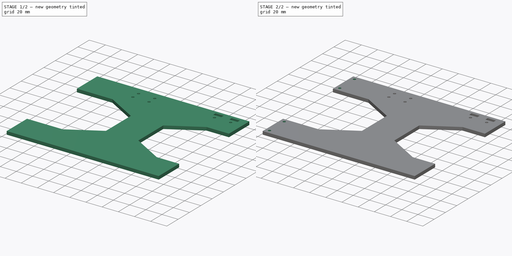
[diagram: build sequence overview — one tinted view per stage of 2, left to right]
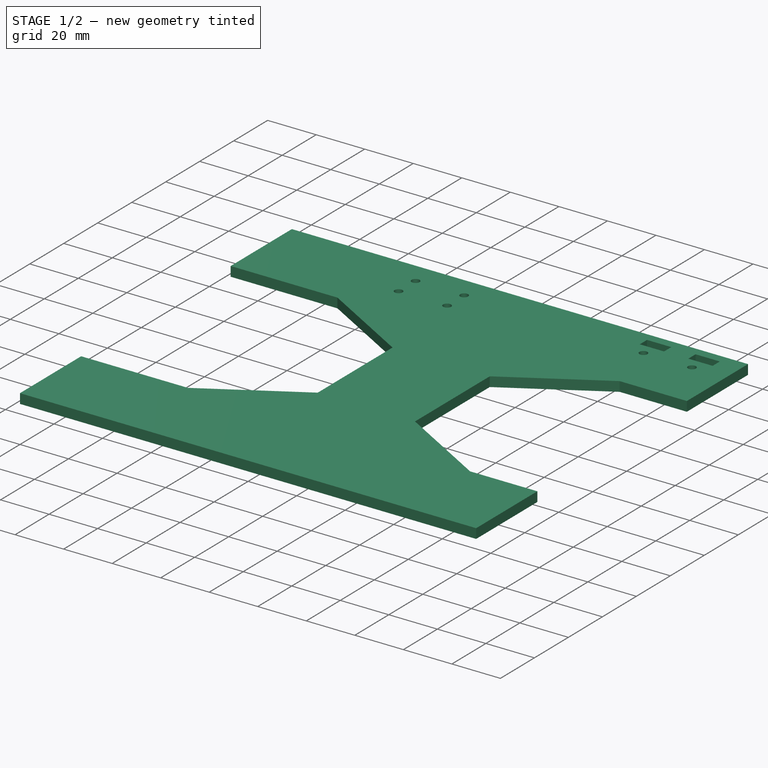
[diagram: stage 1 of 2 — iso view after this stage's code; geometry added in this stage tinted green]
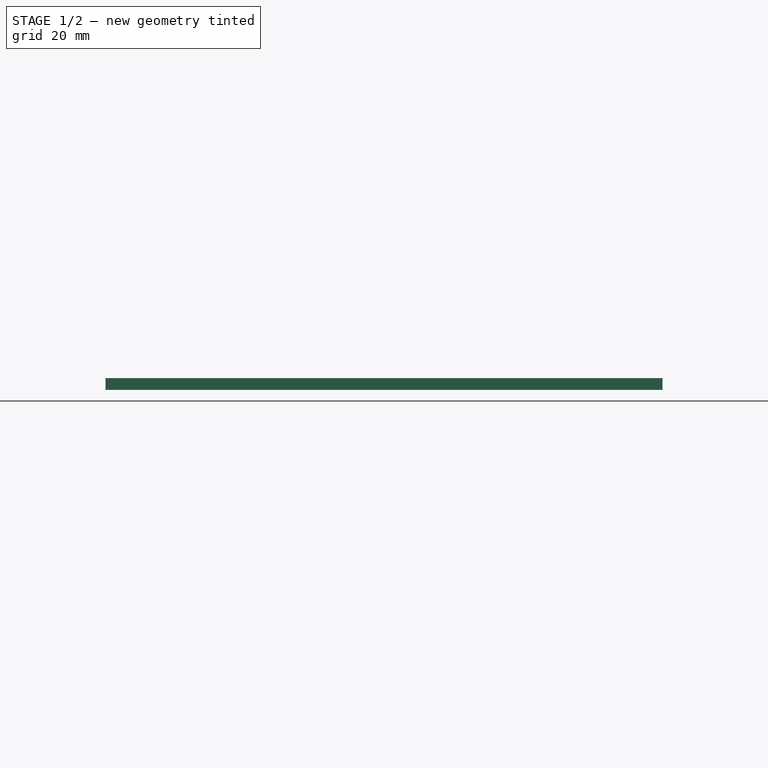
[diagram: stage 1 of 2 — front view after this stage's code; geometry added in this stage tinted green]
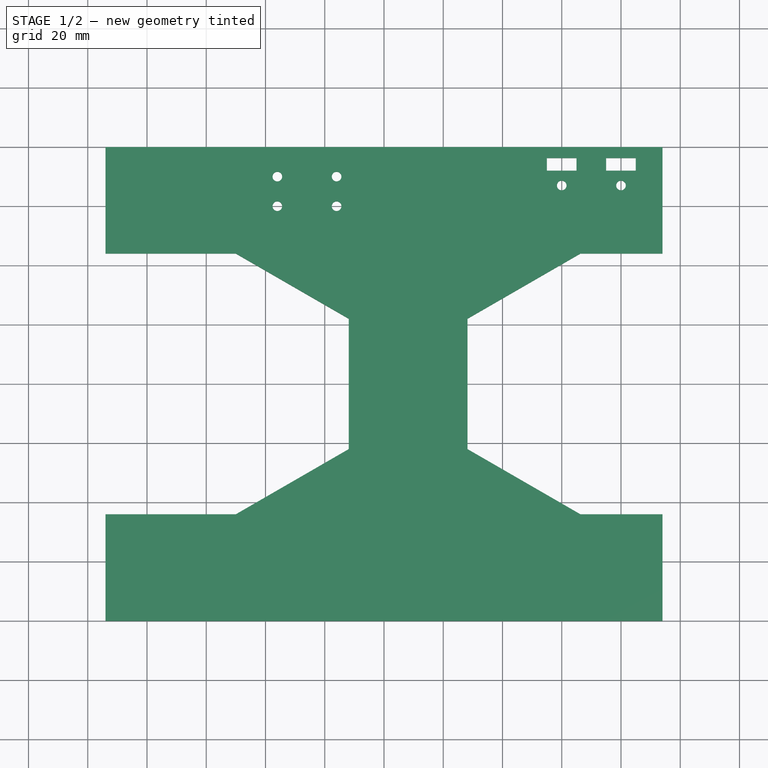
[diagram: stage 1 of 2 — top view after this stage's code; geometry added in this stage tinted green]
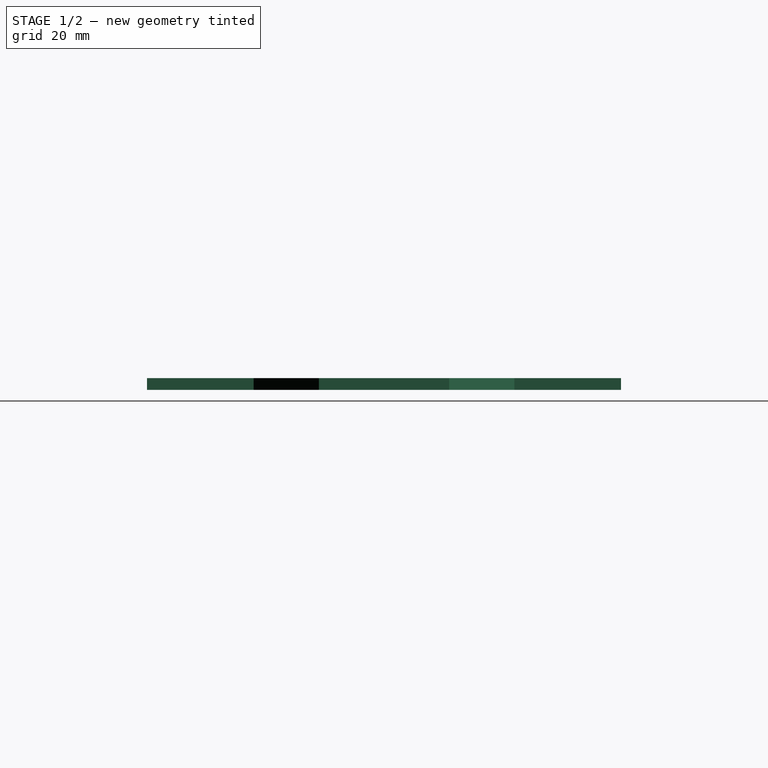
[diagram: stage 1 of 2 — right view after this stage's code; geometry added in this stage tinted green]
FCSTD DOCUMENT  (FreeCAD 0.21R33771 (Git))
Label: reactor-stand-H.v0.2
License: All rights reserved
LicenseURL: https://en.wikipedia.org/wiki/All_rights_reserved
objects: Sketcher::SketchObject×3, PartDesign::Pocket×2, PartDesign::Pad×1, PartDesign::Body×1
note: 10 computed .brp shape members not serialized (recipe doc carries the construction recipe); baked Part::Feature solids carry a one-line shape summary decoded from their .brp

FEATURE [Sketcher::SketchObject] Sketch
  FullyConstrained = true
  MapMode = 5
  Support = -> [XY_Plane]
  sketch-geometry (18):
    g0: LineSegment StartX=94 StartY=80 StartZ=0 EndX=94 EndY=44 EndZ=0
    g1: LineSegment StartX=94 StartY=-80 StartZ=0 EndX=-94 EndY=-80 EndZ=0
    g2: LineSegment StartX=94 StartY=-44 StartZ=0 EndX=66.29 EndY=-44 EndZ=0
    g3: LineSegment StartX=-50 StartY=-44 StartZ=0 EndX=-11.8949 EndY=-22 EndZ=0
    g4: LineSegment StartX=-11.8949 StartY=-22 StartZ=0 EndX=-11.895 EndY=22 EndZ=0
    g5: LineSegment StartX=-11.895 StartY=22 StartZ=0 EndX=-50 EndY=44 EndZ=0
    g6: Circle CenterX=-50.0001 CenterY=-1e-16 CenterZ=0 NormalX=0 NormalY=0 NormalZ=1 AngleXU=0 Radius=44
    g7: LineSegment StartX=66.29 StartY=44 StartZ=0 EndX=28.1849 EndY=22 EndZ=0
    g8: LineSegment StartX=28.1849 StartY=22 StartZ=0 EndX=28.1849 EndY=-22 EndZ=0
    g9: LineSegment StartX=28.1849 StartY=-22 StartZ=0 EndX=66.29 EndY=-44 EndZ=0
    g10: Circle CenterX=66.29 CenterY=0 CenterZ=0 NormalX=0 NormalY=0 NormalZ=1 AngleXU=0 Radius=44
    g11: LineSegment StartX=-50 StartY=-44 StartZ=0 EndX=-94 EndY=-44 EndZ=0
    g12: LineSegment StartX=66.29 StartY=44 StartZ=0 EndX=94 EndY=44 EndZ=0
    g13: LineSegment StartX=-94 StartY=-44 StartZ=0 EndX=-94 EndY=-80 EndZ=0
    g14: LineSegment StartX=94 StartY=-44 StartZ=0 EndX=94 EndY=-80 EndZ=0
    g15: LineSegment StartX=94 StartY=80 StartZ=0 EndX=-94 EndY=80 EndZ=0
    g16: LineSegment StartX=-94 StartY=80 StartZ=0 EndX=-94 EndY=44 EndZ=0
    g17: LineSegment StartX=-94 StartY=44 StartZ=0 EndX=-50 EndY=44 EndZ=0
  constraints (53):
    c: Vertical(g0)
    c: Horizontal(g2)
    c: PointOnObject(g2,g0)
    c: Coincident(g3,g4)
    c: Coincident(g4,g5)
    c: Equal(g3,g4)
    c: Equal(g3,g5)
    c: PointOnObject(g3,g6)
    c: PointOnObject(g4,g6)
    c: PointOnObject(g5,g6)
    c: PointOnObject(g3,g6)
    c: Coincident(g7,g8)
    c: Coincident(g8,g9)
    c: PointOnObject(g7,g10)
    c: PointOnObject(g7,g10)
    c: PointOnObject(g8,g10)
    c: PointOnObject(g9,g10)
    c: PointOnObject(g10,g-1)
    c: DistanceX(g7,g9) = 0
    c: Angle(g2,g9,g9) = 2.61799
    c: Angle(g8,g9,g8) = 1.0472
    c: DistanceX(g9,g2) = 27.71
    c: DistanceX(g11,g3) = 44
    c: Symmetric(g1,g1,g-2)
    c: Coincident(g2,g9)
    c: Coincident(g12,g7)
    c: Coincident(g12,g0)
    c: Horizontal(g12)
    c: DistanceY(g0,g0) = 36
    c: DistanceY(g4,g7) = 0
    c: DistanceX(g1,g1) = 188
    c: Coincident(g11,g3)
    c: DistanceY(g1,g11) = 36
    c: Horizontal(g11)
    c: Coincident(g13,g11)
    c: Coincident(g13,g1)
    c: Vertical(g13)
    c: Coincident(g14,g2)
    c: Coincident(g14,g1)
    c: Vertical(g14)
    c: Coincident(g15,g0)
    c: Horizontal(g15)
    c: Coincident(g16,g15)
    c: Vertical(g16)
    c: Coincident(g17,g16)
    c: Coincident(g17,g5)
    c: Horizontal(g17)
    c: Tangent(g17,g6)
    c: DistanceX(g15,g0) = 188
    c: Equal(g7,g8)
    c: DistanceY(g1,g0) = 160
    c: DistanceY(g16,g0) = 0
    c: DistanceY(g11,g2) = 0
FEATURE [PartDesign::Pad] Pad
  Direction = (0,0,1)
  Length = 4
  Length2 = 10
  Profile = -> Sketch
  ReferenceAxis = -> Sketch [N_Axis]
  Type = 0
FEATURE [Sketcher::SketchObject] Sketch001
  FullyConstrained = true
  MapMode = 5
  Placement = pos=(0,0,4) rot=(0,0,1;0rad)
  Support = -> [Pad]
  sketch-geometry (14):
    g0: Circle CenterX=-36 CenterY=70 CenterZ=0 NormalX=0 NormalY=0 NormalZ=1 AngleXU=0 Radius=1.625
    g1: Circle CenterX=-16 CenterY=70 CenterZ=0 NormalX=0 NormalY=0 NormalZ=1 AngleXU=0 Radius=1.625
    g2: Circle CenterX=-16 CenterY=60 CenterZ=0 NormalX=0 NormalY=0 NormalZ=1 AngleXU=0 Radius=1.625
    g3: Circle CenterX=-36 CenterY=60 CenterZ=0 NormalX=0 NormalY=0 NormalZ=1 AngleXU=0 Radius=1.625
    g4: Circle CenterX=60 CenterY=67 CenterZ=0 NormalX=0 NormalY=0 NormalZ=1 AngleXU=0 Radius=1.625
    g5: Circle CenterX=80 CenterY=67 CenterZ=0 NormalX=0 NormalY=0 NormalZ=1 AngleXU=0 Radius=1.625
    g6: LineSegment StartX=55 StartY=76.25 StartZ=0 EndX=65 EndY=76.25 EndZ=0
    g7: LineSegment StartX=65 StartY=76.25 StartZ=0 EndX=65 EndY=72 EndZ=0
    g8: LineSegment StartX=65 StartY=72 StartZ=0 EndX=55 EndY=72 EndZ=0
    g9: LineSegment StartX=55 StartY=72 StartZ=0 EndX=55 EndY=76.25 EndZ=0
    g10: LineSegment StartX=75 StartY=76.25 StartZ=0 EndX=85 EndY=76.25 EndZ=0
    g11: LineSegment StartX=85 StartY=76.25 StartZ=0 EndX=85 EndY=72 EndZ=0
    g12: LineSegment StartX=85 StartY=72 StartZ=0 EndX=75 EndY=72 EndZ=0
    g13: LineSegment StartX=75 StartY=72 StartZ=0 EndX=75 EndY=76.25 EndZ=0
  constraints (42):
    c: Equal(g0,g3)
    c: Equal(g0,g2)
    c: Equal(g0,g1)
    c: Diameter(g0) = 3.25
    c: DistanceY(g0,g1) = 0
    c: DistanceX(g3,g0) = 0
    c: DistanceY(g3,g2) = 0
    c: DistanceX(g1,g2) = 0
    c: DistanceX(g0,g1) = 20
    c: DistanceY(g3,g0) = 10
    c: DistanceY(g-1,g1) = 70
    c: DistanceX(g1,g-1) = 16
    c: Equal(g4,g5)
    c: Diameter(g4) = 3.25
    c: DistanceY(g5,g4) = 0
    c: DistanceX(g-1,g4) = 60
    c: Coincident(g6,g7)
    c: Coincident(g7,g8)
    c: Coincident(g8,g9)
    c: Coincident(g9,g6)
    c: Horizontal(g6)
    c: Horizontal(g8)
    c: Vertical(g7)
    c: Vertical(g9)
    c: DistanceY(g9,g9) = 4.25
    c: DistanceX(g6,g6) = 10
    c: Coincident(g10,g11)
    c: Coincident(g11,g12)
    c: Coincident(g12,g13)
    c: Coincident(g13,g10)
    c: Horizontal(g10)
    c: Horizontal(g12)
    c: Vertical(g11)
    c: Vertical(g13)
    c: DistanceX(g10,g10) = 10
    c: DistanceX(g6,g10) = 10
    c: DistanceX(g-1,g6) = 55
    c: DistanceY(g-1,g8) = 72
    c: DistanceY(g10,g6) = 0
    c: DistanceY(g-1,g4) = 67
    c: DistanceX(g4,g5) = 20
    c: DistanceY(g7,g12) = 0
FEATURE [PartDesign::Pocket] Pocket
  BaseFeature = -> Pad
  Direction = (0,0,-1)
  Length = 5
  Length2 = 5
  Profile = -> Sketch001
  ReferenceAxis = -> Sketch001 [N_Axis]
  Type = 1
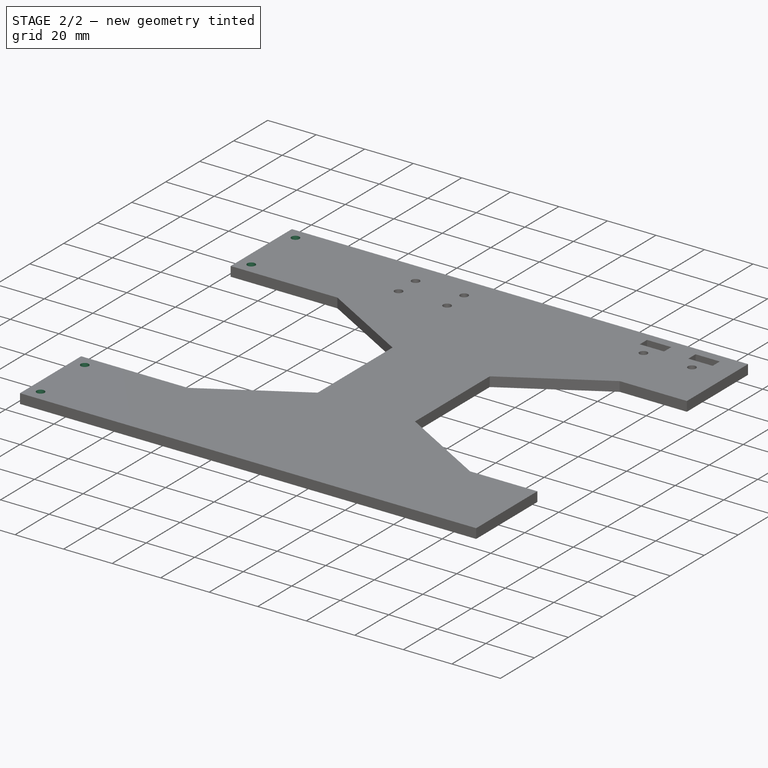
[diagram: stage 2 of 2 — iso view after this stage's code; geometry added in this stage tinted green]
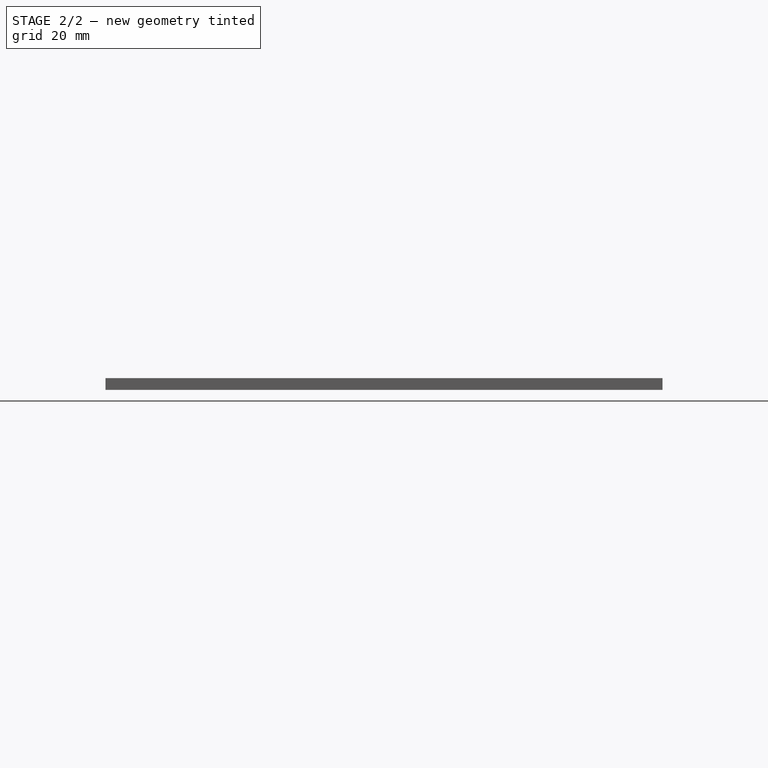
[diagram: stage 2 of 2 — front view after this stage's code; geometry added in this stage tinted green]
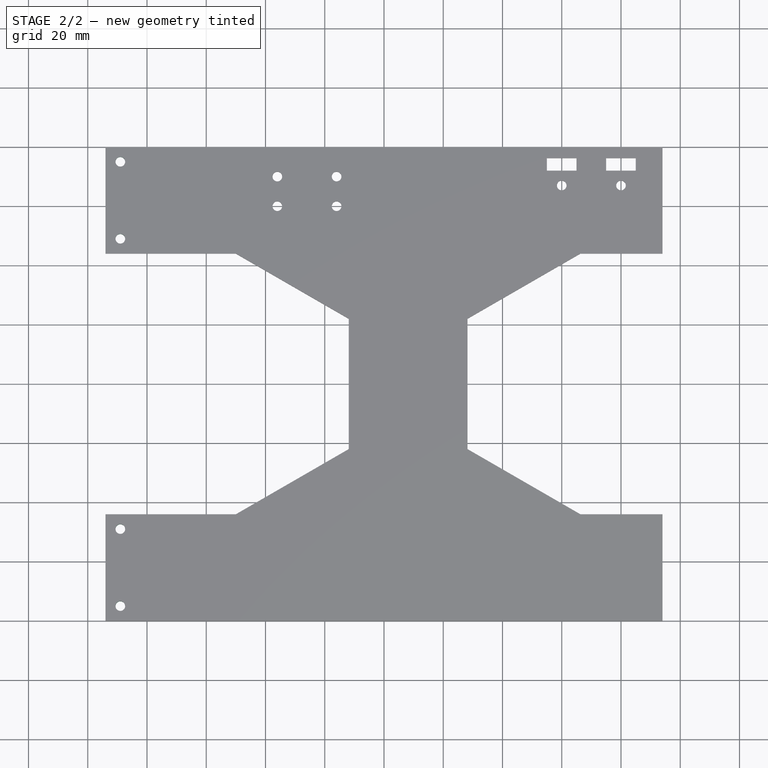
[diagram: stage 2 of 2 — top view after this stage's code; geometry added in this stage tinted green]
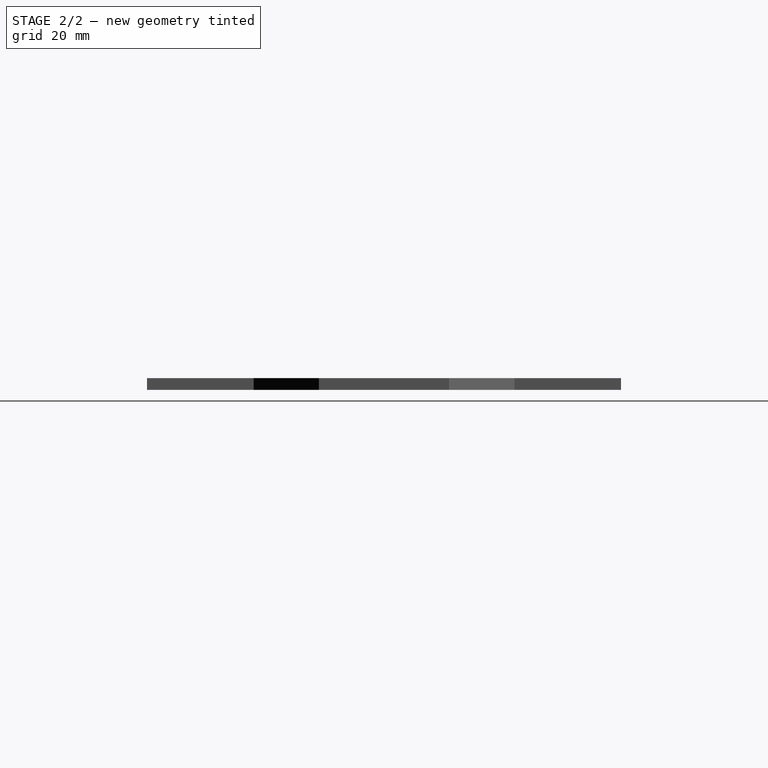
[diagram: stage 2 of 2 — right view after this stage's code; geometry added in this stage tinted green]
FEATURE [Sketcher::SketchObject] Sketch002
  FullyConstrained = true
  MapMode = 5
  Placement = pos=(0,0,4) rot=(0,0,1;0rad)
  Support = -> [Pocket]
  sketch-geometry (4):
    g0: Circle CenterX=-89 CenterY=75 CenterZ=0 NormalX=0 NormalY=0 NormalZ=1 AngleXU=0 Radius=1.625
    g1: Circle CenterX=-89 CenterY=49 CenterZ=0 NormalX=0 NormalY=0 NormalZ=1 AngleXU=0 Radius=1.625
    g2: Circle CenterX=-89 CenterY=-49 CenterZ=0 NormalX=0 NormalY=0 NormalZ=1 AngleXU=0 Radius=1.625
    g3: Circle CenterX=-89 CenterY=-75 CenterZ=0 NormalX=0 NormalY=0 NormalZ=1 AngleXU=0 Radius=1.625
  constraints (12):
    c: Equal(g3,g2)
    c: Equal(g3,g0)
    c: Equal(g3,g1)
    c: Diameter(g3) = 3.25
    c: DistanceX(g3,g2) = 0
    c: DistanceY(g3,g2) = 26
    c: DistanceY(g2,g-1) = 49
    c: DistanceX(g2,g-1) = 89
    c: DistanceX(g1,g0) = 0
    c: DistanceY(g1,g0) = 26
    c: DistanceX(g1,g2) = 0
    c: DistanceY(g-1,g1) = 49
FEATURE [PartDesign::Pocket] Pocket001
  BaseFeature = -> Pocket
  Direction = (0,0,-1)
  Length = 5
  Length2 = 5
  Profile = -> Sketch002
  ReferenceAxis = -> Sketch002 [N_Axis]
  Type = 1
FEATURE [PartDesign::Body] Body
  Group = -> [Sketch,Pad,Sketch001,Pocket,Sketch002,Pocket001]
  Origin = -> Origin
  Tip = -> Pocket001
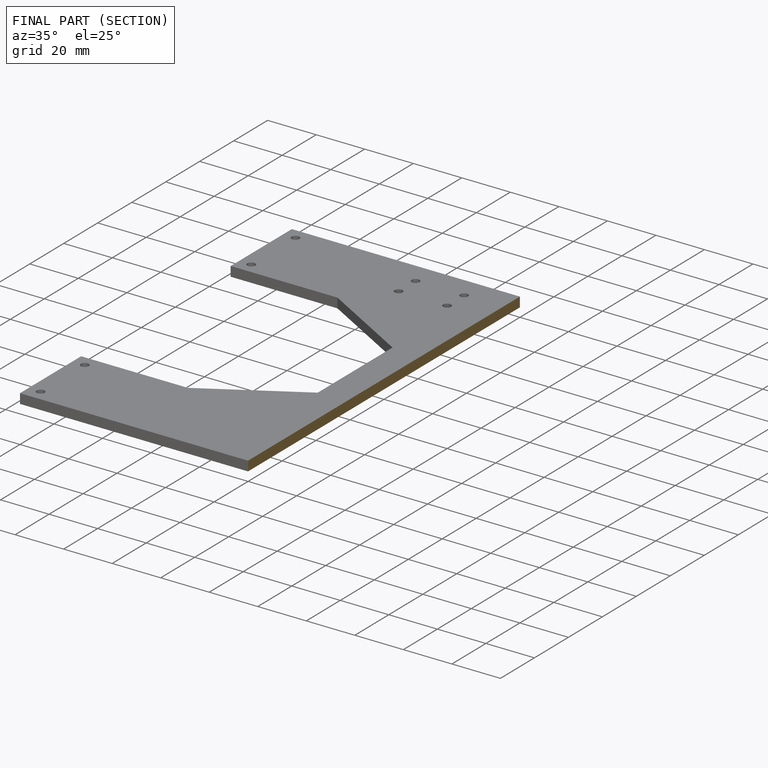
[diagram: finished part — half-section view (interior)]
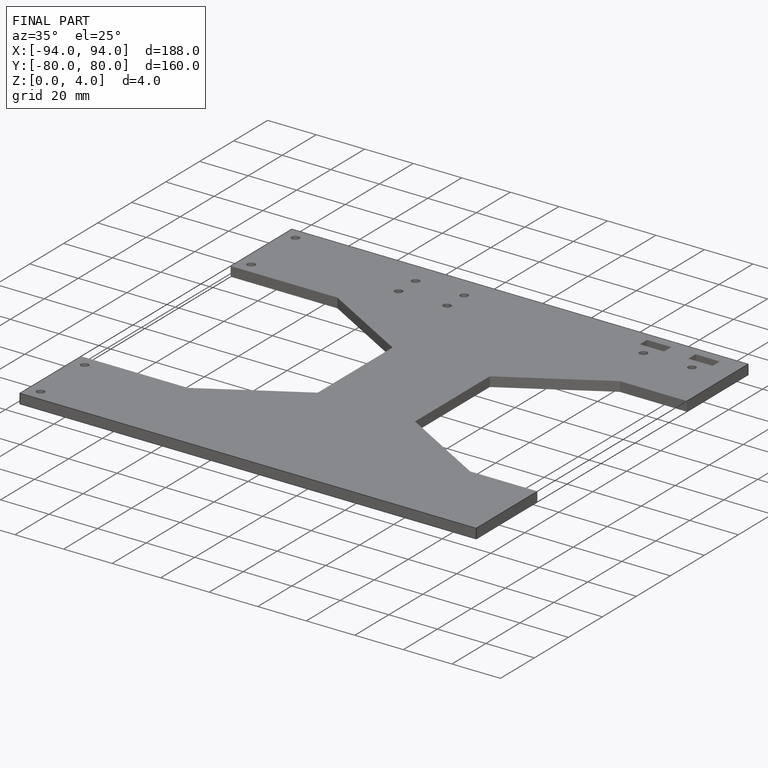
[diagram: finished part — iso view with bounding-box wireframe]
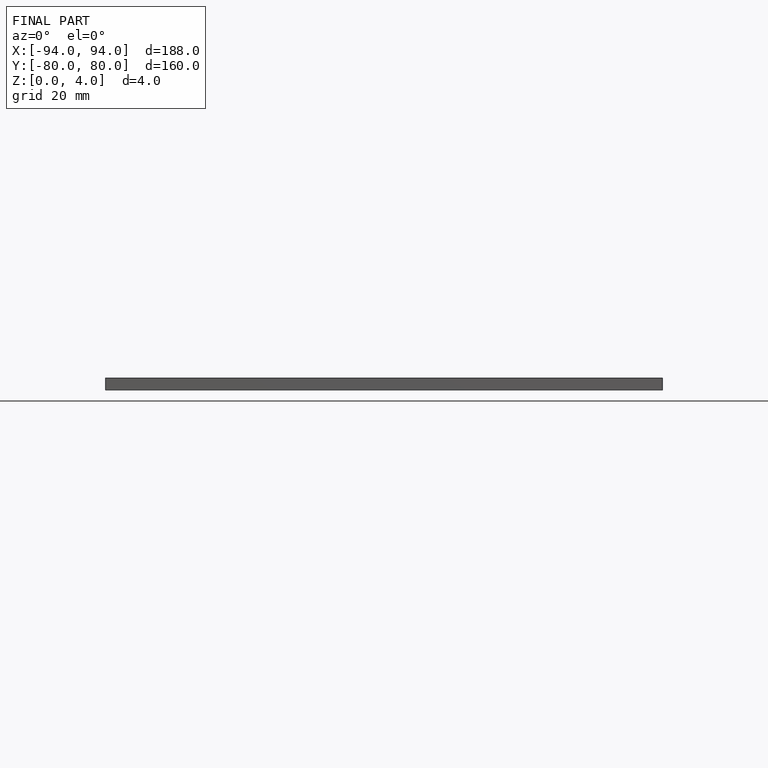
[diagram: finished part — front view with bounding-box wireframe]
